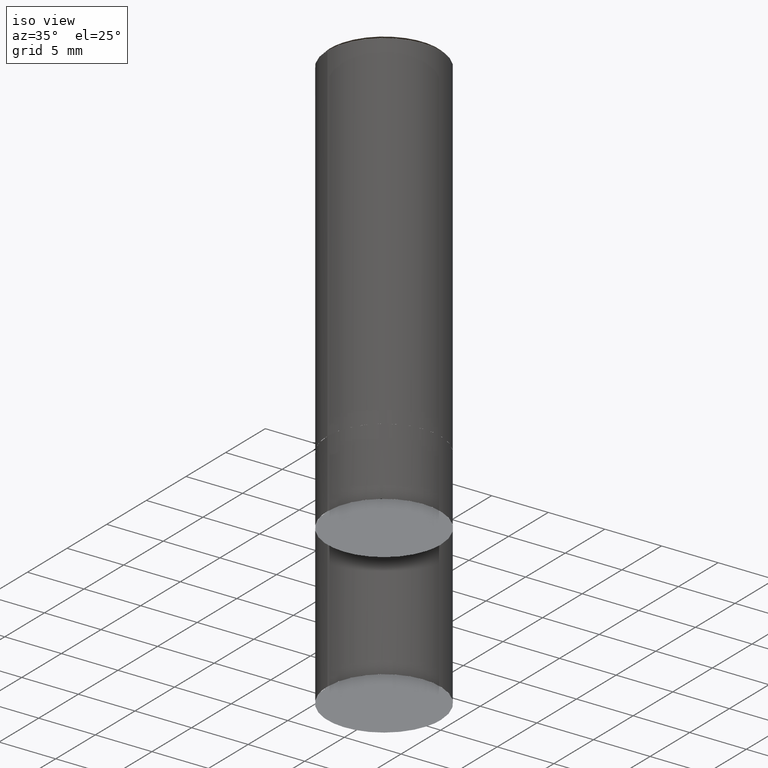
[diagram: clean part render]
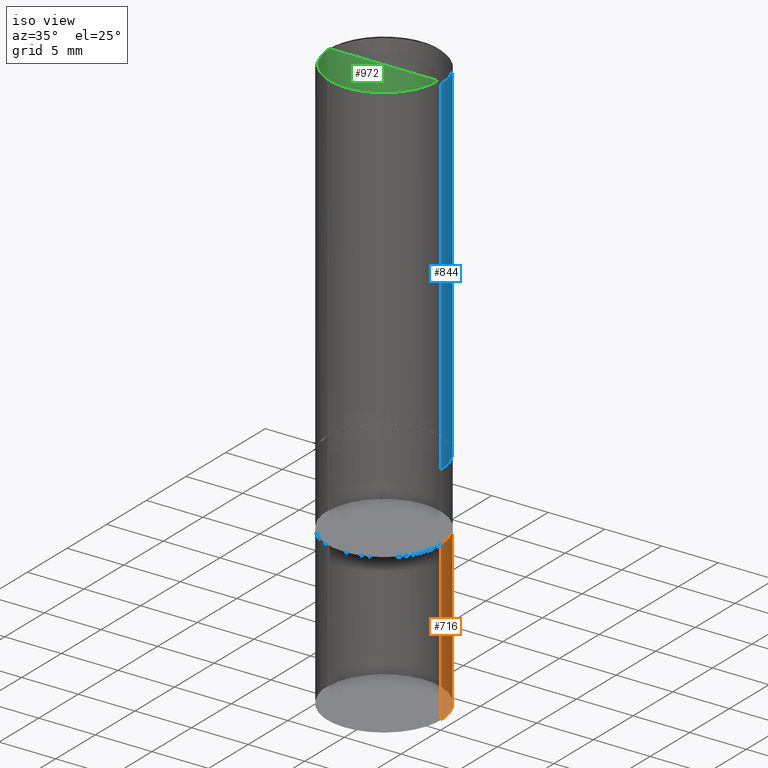
[diagram: same view with three faces highlighted in distinct colors, each labeled with its STEP entity id]
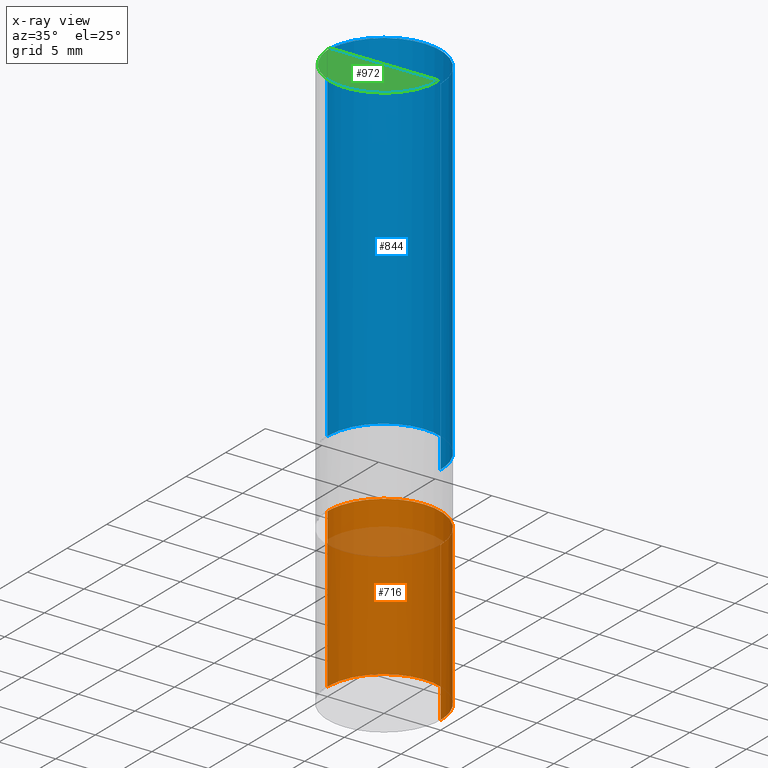
[diagram: x-ray of the same camera — body ghosted, the three highlighted faces saturated]
A machine part, iso view with three faces highlighted in distinct colors.
The next image is the same camera in x-ray (body ghosted, the three faces saturated) — at least one of them is partly hidden behind the body in this view.
Their STEP definitions:

[orange] entity #716 — the highlighted face is a freeform B-spline surface patch.
#634=CARTESIAN_POINT('',(5.0,0.0,-20.0));
#635=CARTESIAN_POINT('',(5.0,5.0,-20.0));
#636=CARTESIAN_POINT('',(0.0,5.0,-20.0));
#637=CARTESIAN_POINT('',(-5.0,5.0,-20.0));
#638=CARTESIAN_POINT('',(-5.0,0.0,-20.0));
#639=CARTESIAN_POINT('',(5.0,0.0,-6.0));
#640=CARTESIAN_POINT('',(5.0,5.0,-6.0));
#641=CARTESIAN_POINT('',(0.0,5.0,-6.0));
#642=CARTESIAN_POINT('',(-5.0,5.0,-6.0));
#643=CARTESIAN_POINT('',(-5.0,0.0,-6.0));
#697=(
BOUNDED_SURFACE()
B_SPLINE_SURFACE(1,2,(
(#634,#635,#636,#637,#638),
(#639,#640,#641,#642,#643)
), .UNSPECIFIED.,.F.,.F.,.F.)
B_SPLINE_SURFACE_WITH_KNOTS((2,2),(3,2,3),(
0.0,1.0),(
0.0,0.5,1.0), .UNSPECIFIED.)
GEOMETRIC_REPRESENTATION_ITEM()
RATIONAL_B_SPLINE_SURFACE(((1.0,0.707106781187,1.0,0.707106781187,1.0),
(1.0,0.707106781187,1.0,0.707106781187,1.0)
))
REPRESENTATION_ITEM('')
SURFACE()
);
#698=(
BOUNDED_CURVE()
B_SPLINE_CURVE(2,(#638,#637,#636,#635,#634),.UNSPECIFIED.,.F.,.F.)
B_SPLINE_CURVE_WITH_KNOTS((3,2,3),
(0.0,0.5,1.0),.UNSPECIFIED.)
CURVE()
GEOMETRIC_REPRESENTATION_ITEM()
RATIONAL_B_SPLINE_CURVE((1.0,0.707106781187,1.0,0.707106781187,1.0))
REPRESENTATION_ITEM('')
);
#699=(
BOUNDED_CURVE()
B_SPLINE_CURVE(1,(#634,#639),.UNSPECIFIED.,.F.,.F.)
B_SPLINE_CURVE_WITH_KNOTS((2,2),
(0.0,1.0),.UNSPECIFIED.)
CURVE()
GEOMETRIC_REPRESENTATION_ITEM()
RATIONAL_B_SPLINE_CURVE((1.0,1.0))
REPRESENTATION_ITEM('')
);
#700=(
BOUNDED_CURVE()
B_SPLINE_CURVE(2,(#639,#640,#641,#642,#643),.UNSPECIFIED.,.F.,.F.)
B_SPLINE_CURVE_WITH_KNOTS((3,2,3),
(0.0,0.5,1.0),.UNSPECIFIED.)
CURVE()
GEOMETRIC_REPRESENTATION_ITEM()
RATIONAL_B_SPLINE_CURVE((1.0,0.707106781187,1.0,0.707106781187,1.0))
REPRESENTATION_ITEM('')
);
#701=(
BOUNDED_CURVE()
B_SPLINE_CURVE(1,(#643,#638),.UNSPECIFIED.,.F.,.F.)
B_SPLINE_CURVE_WITH_KNOTS((2,2),
(0.0,1.0),.UNSPECIFIED.)
CURVE()
GEOMETRIC_REPRESENTATION_ITEM()
RATIONAL_B_SPLINE_CURVE((1.0,1.0))
REPRESENTATION_ITEM('')
);
#702=VERTEX_POINT('',#634);
#703=VERTEX_POINT('',#638);
#704=VERTEX_POINT('',#639);
#705=VERTEX_POINT('',#643);
#706=EDGE_CURVE('',#703,#702,#698,.T.);
#707=EDGE_CURVE('',#702,#704,#699,.T.);
#708=EDGE_CURVE('',#704,#705,#700,.T.);
#709=EDGE_CURVE('',#705,#703,#701,.T.);
#710=ORIENTED_EDGE('',*,*,#706,.T.);
#711=ORIENTED_EDGE('',*,*,#707,.T.);
#712=ORIENTED_EDGE('',*,*,#708,.T.);
#713=ORIENTED_EDGE('',*,*,#709,.T.);
#714=EDGE_LOOP('',(#710,#711,#712,#713));
#715=FACE_OUTER_BOUND('',#714,.T.);
#716=ADVANCED_FACE('',(#715),#697,.T.);

[blue] entity #844 — the highlighted face is a freeform B-spline surface patch.
#650=CARTESIAN_POINT('',(5.0,0.0,0.0));
#651=CARTESIAN_POINT('',(5.0,5.0,0.0));
#652=CARTESIAN_POINT('',(0.0,5.0,0.0));
#653=CARTESIAN_POINT('',(-5.0,5.0,0.0));
#654=CARTESIAN_POINT('',(-5.0,0.0,0.0));
#655=CARTESIAN_POINT('',(5.0,0.0,30.8));
#656=CARTESIAN_POINT('',(5.0,5.0,30.8));
#657=CARTESIAN_POINT('',(0.0,5.0,30.8));
#658=CARTESIAN_POINT('',(-5.0,5.0,30.8));
#659=CARTESIAN_POINT('',(-5.0,0.0,30.8));
#825=(
BOUNDED_SURFACE()
B_SPLINE_SURFACE(1,2,(
(#650,#651,#652,#653,#654),
(#655,#656,#657,#658,#659)
), .UNSPECIFIED.,.F.,.F.,.F.)
B_SPLINE_SURFACE_WITH_KNOTS((2,2),(3,2,3),(
0.0,1.0),(
0.0,0.5,1.0), .UNSPECIFIED.)
GEOMETRIC_REPRESENTATION_ITEM()
RATIONAL_B_SPLINE_SURFACE(((1.0,0.707106781187,1.0,0.707106781187,1.0),
(1.0,0.707106781187,1.0,0.707106781187,1.0)
))
REPRESENTATION_ITEM('')
SURFACE()
);
#826=(
BOUNDED_CURVE()
B_SPLINE_CURVE(2,(#654,#653,#652,#651,#650),.UNSPECIFIED.,.F.,.F.)
B_SPLINE_CURVE_WITH_KNOTS((3,2,3),
(0.0,0.5,1.0),.UNSPECIFIED.)
CURVE()
GEOMETRIC_REPRESENTATION_ITEM()
RATIONAL_B_SPLINE_CURVE((1.0,0.707106781187,1.0,0.707106781187,1.0))
REPRESENTATION_ITEM('')
);
#827=(
BOUNDED_CURVE()
B_SPLINE_CURVE(1,(#650,#655),.UNSPECIFIED.,.F.,.F.)
B_SPLINE_CURVE_WITH_KNOTS((2,2),
(0.0,1.0),.UNSPECIFIED.)
CURVE()
GEOMETRIC_REPRESENTATION_ITEM()
RATIONAL_B_SPLINE_CURVE((1.0,1.0))
REPRESENTATION_ITEM('')
);
#828=(
BOUNDED_CURVE()
B_SPLINE_CURVE(2,(#655,#656,#657,#658,#659),.UNSPECIFIED.,.F.,.F.)
B_SPLINE_CURVE_WITH_KNOTS((3,2,3),
(0.0,0.5,1.0),.UNSPECIFIED.)
CURVE()
GEOMETRIC_REPRESENTATION_ITEM()
RATIONAL_B_SPLINE_CURVE((1.0,0.707106781187,1.0,0.707106781187,1.0))
REPRESENTATION_ITEM('')
);
#829=(
BOUNDED_CURVE()
B_SPLINE_CURVE(1,(#659,#654),.UNSPECIFIED.,.F.,.F.)
B_SPLINE_CURVE_WITH_KNOTS((2,2),
(0.0,1.0),.UNSPECIFIED.)
CURVE()
GEOMETRIC_REPRESENTATION_ITEM()
RATIONAL_B_SPLINE_CURVE((1.0,1.0))
REPRESENTATION_ITEM('')
);
#830=VERTEX_POINT('',#650);
#831=VERTEX_POINT('',#654);
#832=VERTEX_POINT('',#655);
#833=VERTEX_POINT('',#659);
#834=EDGE_CURVE('',#831,#830,#826,.T.);
#835=EDGE_CURVE('',#830,#832,#827,.T.);
#836=EDGE_CURVE('',#832,#833,#828,.T.);
#837=EDGE_CURVE('',#833,#831,#829,.T.);
#838=ORIENTED_EDGE('',*,*,#834,.T.);
#839=ORIENTED_EDGE('',*,*,#835,.T.);
#840=ORIENTED_EDGE('',*,*,#836,.T.);
#841=ORIENTED_EDGE('',*,*,#837,.T.);
#842=EDGE_LOOP('',(#838,#839,#840,#841));
#843=FACE_OUTER_BOUND('',#842,.T.);
#844=ADVANCED_FACE('',(#843),#825,.T.);

[green] entity #972 — the highlighted face is a freeform B-spline surface patch.
#660=CARTESIAN_POINT('',(4.8,0.0,31.0));
#664=CARTESIAN_POINT('',(-4.8,0.0,31.0));
#665=CARTESIAN_POINT('',(0.0,0.0,31.0));
#672=CARTESIAN_POINT('',(-4.8,-4.8,31.0));
#673=CARTESIAN_POINT('',(0.0,-4.8,31.0));
#674=CARTESIAN_POINT('',(4.8,-4.8,31.0));
#957=(
BOUNDED_SURFACE()
B_SPLINE_SURFACE(1,2,(
(#664,#672,#673,#674,#660),
(#665,#665,#665,#665,#665)
), .UNSPECIFIED.,.F.,.F.,.F.)
B_SPLINE_SURFACE_WITH_KNOTS((2,2),(3,2,3),(
0.0,1.0),(
0.0,0.5,1.0), .UNSPECIFIED.)
GEOMETRIC_REPRESENTATION_ITEM()
RATIONAL_B_SPLINE_SURFACE(((1.0,0.707106781187,1.0,0.707106781187,1.0),
(1.0,0.707106781187,1.0,0.707106781187,1.0)
))
REPRESENTATION_ITEM('')
SURFACE()
);
#958=(
BOUNDED_CURVE()
B_SPLINE_CURVE(2,(#660,#674,#673,#672,#664),.UNSPECIFIED.,.F.,.F.)
B_SPLINE_CURVE_WITH_KNOTS((3,2,3),
(0.0,0.5,1.0),.UNSPECIFIED.)
CURVE()
GEOMETRIC_REPRESENTATION_ITEM()
RATIONAL_B_SPLINE_CURVE((1.0,0.707106781187,1.0,0.707106781187,1.0))
REPRESENTATION_ITEM('')
);
#959=(
BOUNDED_CURVE()
B_SPLINE_CURVE(1,(#664,#665),.UNSPECIFIED.,.F.,.F.)
B_SPLINE_CURVE_WITH_KNOTS((2,2),
(0.0,1.0),.UNSPECIFIED.)
CURVE()
GEOMETRIC_REPRESENTATION_ITEM()
RATIONAL_B_SPLINE_CURVE((1.0,1.0))
REPRESENTATION_ITEM('')
);
#960=(
BOUNDED_CURVE()
B_SPLINE_CURVE(1,(#665,#660),.UNSPECIFIED.,.F.,.F.)
B_SPLINE_CURVE_WITH_KNOTS((2,2),
(0.0,1.0),.UNSPECIFIED.)
CURVE()
GEOMETRIC_REPRESENTATION_ITEM()
RATIONAL_B_SPLINE_CURVE((1.0,1.0))
REPRESENTATION_ITEM('')
);
#961=VERTEX_POINT('',#660);
#962=VERTEX_POINT('',#664);
#963=VERTEX_POINT('',#665);
#964=EDGE_CURVE('',#961,#962,#958,.T.);
#965=EDGE_CURVE('',#962,#963,#959,.T.);
#966=EDGE_CURVE('',#963,#961,#960,.T.);
#967=ORIENTED_EDGE('',*,*,#964,.T.);
#968=ORIENTED_EDGE('',*,*,#965,.T.);
#969=ORIENTED_EDGE('',*,*,#966,.T.);
#970=EDGE_LOOP('',(#967,#968,#969));
#971=FACE_OUTER_BOUND('',#970,.T.);
#972=ADVANCED_FACE('',(#971),#957,.T.);